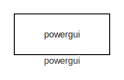
[diagram: root canvas - part 1/3, top center region]
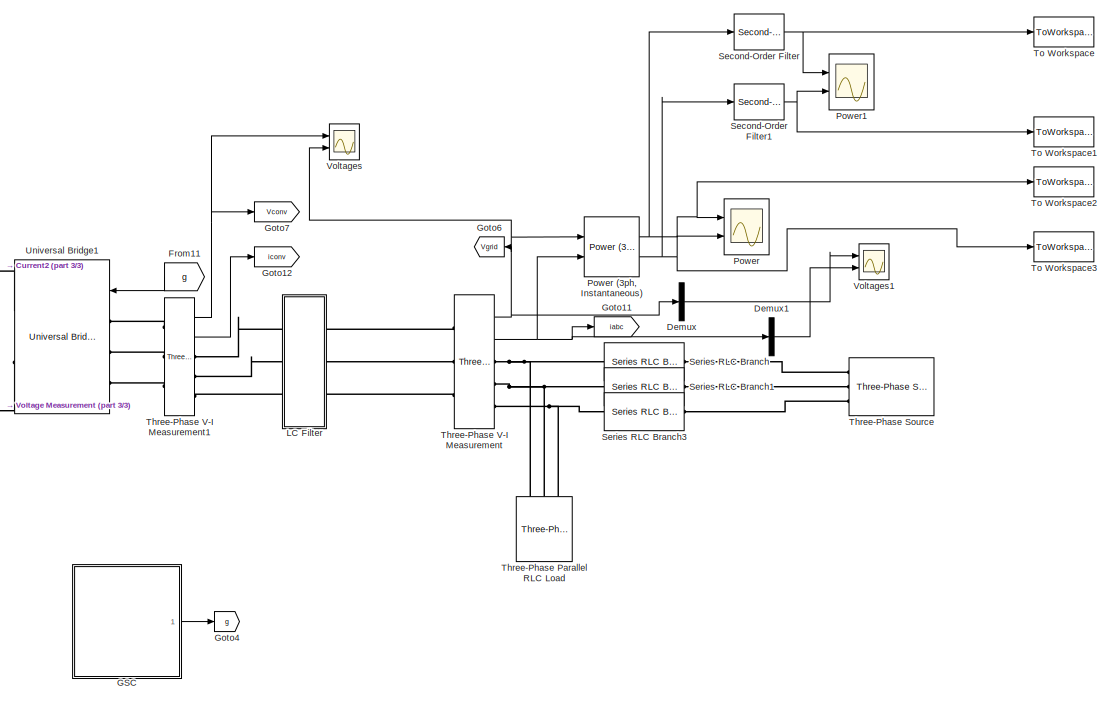
[diagram: root canvas - part 2/3, right side, full height]
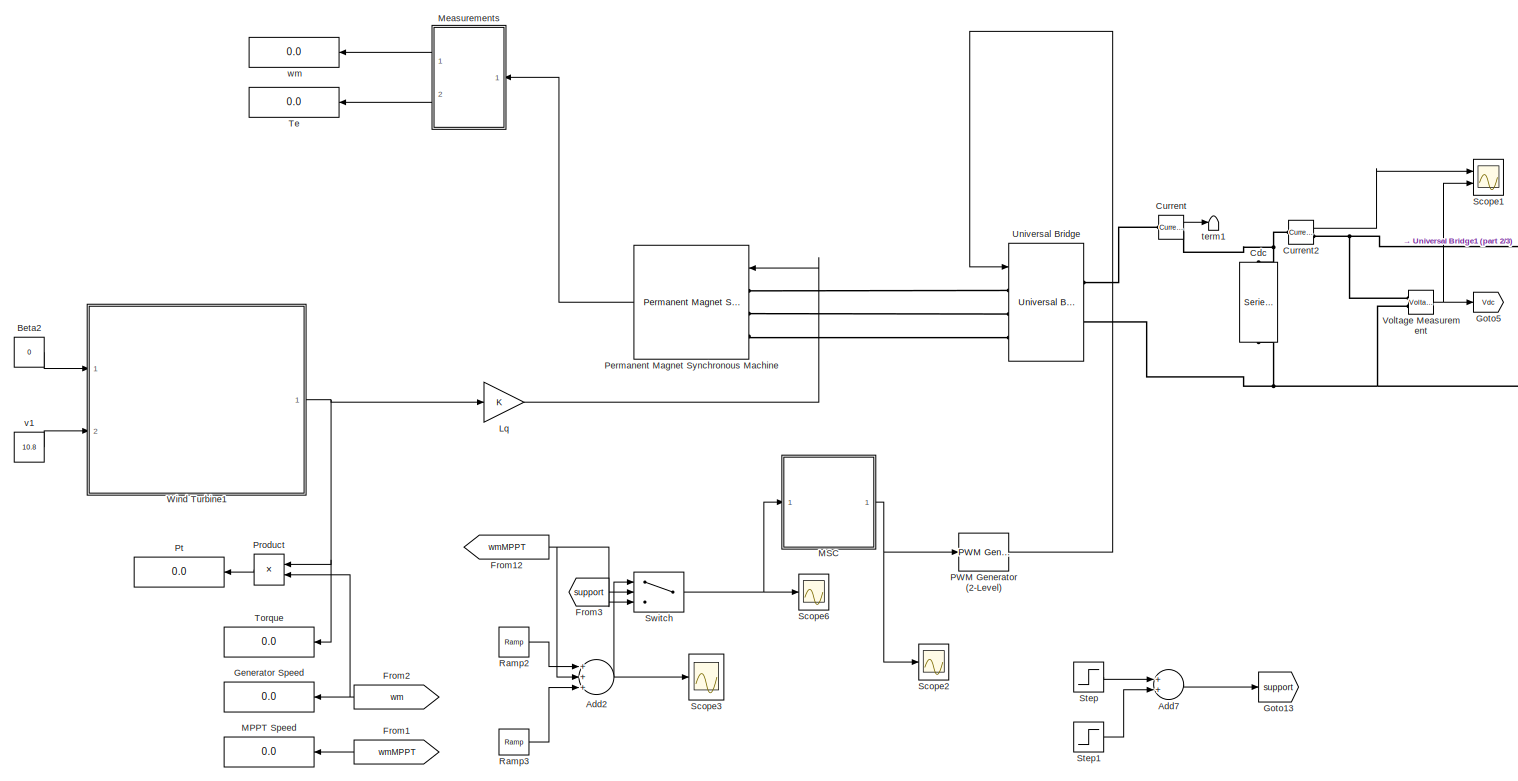
[diagram: root canvas - part 3/3, left side, full height]
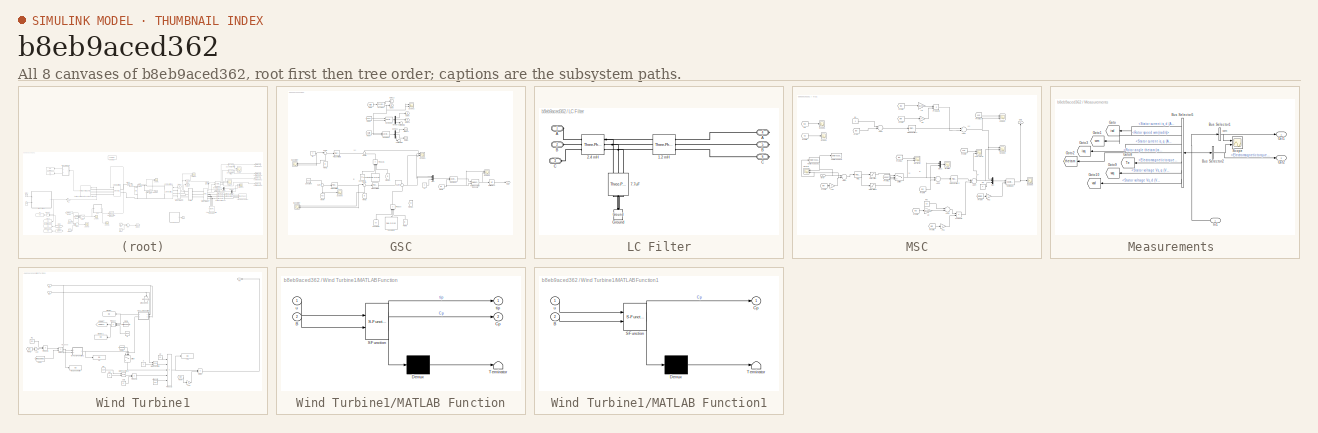
[diagram: thumbnail index - all 8 canvases of the model, root first then tree order]
MODEL slx_b8eb9aced362
KIND model
CONFIG AbsTol = auto
CONFIG FixedStep = Ts
CONFIG MaxStep = auto
CONFIG MinStep = auto
CONFIG PreLoadFcn = Ts=5e-6;
CONFIG RelTol = 1e-3
CONFIG SampleTimeConstraint = Unconstrained
CONFIG Solver = FixedStepDiscrete
CONFIG SolverMode = Auto
CONFIG SolverName = FixedStepDiscrete
CONFIG StartTime = 0.0
CONFIG StopTime = 3
BLOCK [Sum] Add2
  InputSameDT = off
  Inputs = +++
  OutDataTypeStr = Inherit: Inherit via internal rule
  Ports = [3, 1]
  SaturateOnIntegerOverflow = off
BLOCK [Sum] Add7
  InputSameDT = off
  OutDataTypeStr = Inherit: Inherit via internal rule
  Ports = [2, 1]
  SaturateOnIntegerOverflow = off
BLOCK [Constant] Beta2
  Value = 0
BLOCK [Reference] Cdc  REF=powerlib/Elements/Series RLC Branch
  Ports = [0, 0, 0, 0, 0, 1, 1]
  SourceBlock = powerlib/Elements/Series RLC Branch
  SourceType = Series RLC Branch
BLOCK [Reference] Current   REF=powerlib/Measurements/Current Measurement
  Ports = [0, 1, 0, 0, 0, 1, 1]
  SourceBlock = powerlib/Measurements/Current Measurement
  SourceType = Current Measurement
  UserDataPersistent = on
BLOCK [Reference] Current2  REF=powerlib/Measurements/Current Measurement
  Ports = [0, 1, 0, 0, 0, 1, 1]
  SourceBlock = powerlib/Measurements/Current Measurement
  SourceType = Current Measurement
  UserDataPersistent = on
BLOCK [Demux] Demux
  DisplayOption = bar
  Outputs = 3
  Ports = [1, 3]
BLOCK [Demux] Demux1
  DisplayOption = bar
  Outputs = 3
  Ports = [1, 3]
BLOCK [From] From1
  GotoTag = wmMPPT
  TagVisibility = global
BLOCK [From] From11
  GotoTag = g
  TagVisibility = global
BLOCK [From] From12
  GotoTag = wmMPPT
  TagVisibility = global
BLOCK [From] From2
  GotoTag = wm
  TagVisibility = global
BLOCK [From] From3
  GotoTag = support
  TagVisibility = global
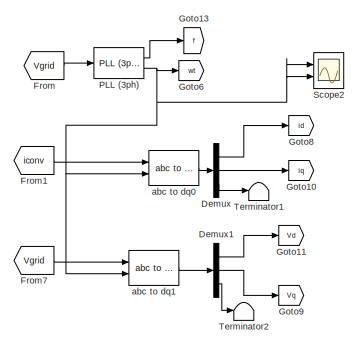
[diagram: GSC - part 1/2, top center region]
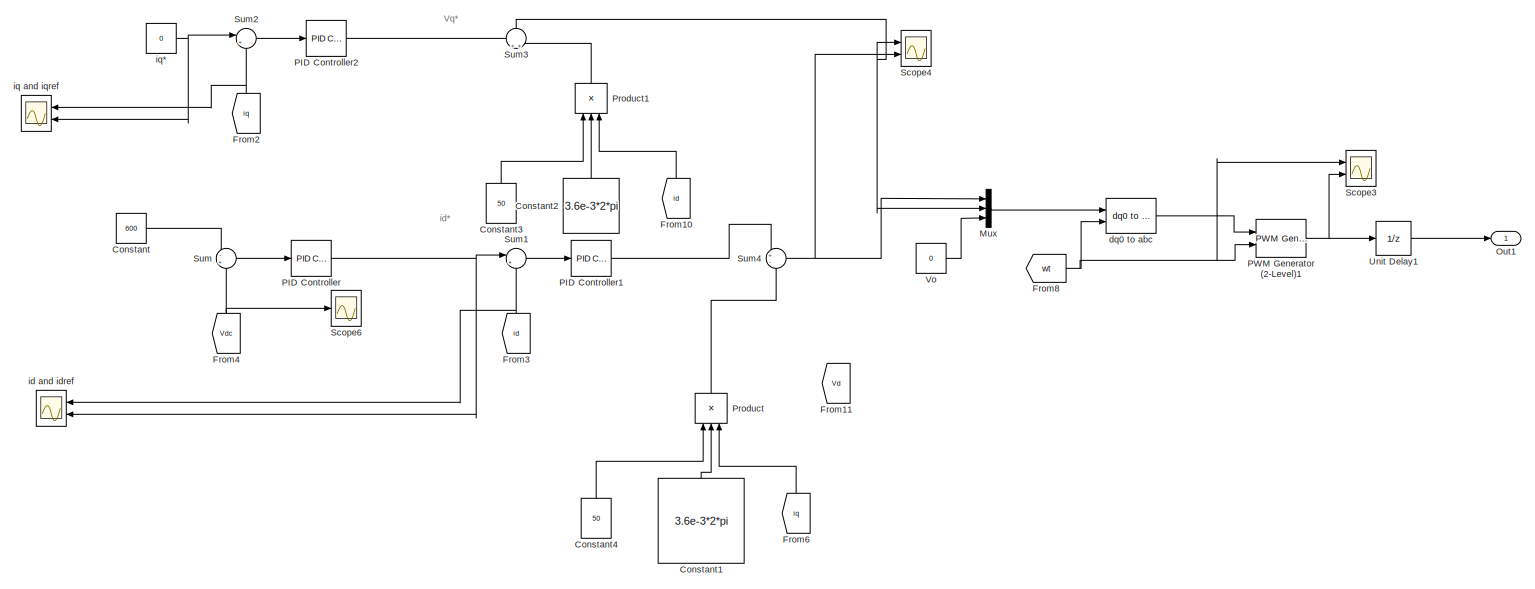
[diagram: GSC - part 2/2, full width, bottom band]
BLOCK [SubSystem] GSC
  Ports = [0, 1]
  RequestExecContextInheritance = off
  Variant = off
BLOCK [Constant] GSC/Constant
  Value = 600
BLOCK [Constant] GSC/Constant1
  Value = 3.6e-3*2*pi
BLOCK [Constant] GSC/Constant2
  Value = 3.6e-3*2*pi
BLOCK [Constant] GSC/Constant3
  Value = 50
BLOCK [Constant] GSC/Constant4
  Value = 50
BLOCK [Demux] GSC/Demux
  DisplayOption = bar
  Outputs = 3
  Ports = [1, 3]
BLOCK [Demux] GSC/Demux1
  DisplayOption = bar
  Outputs = 3
  Ports = [1, 3]
BLOCK [From] GSC/From
  GotoTag = Vgrid
  TagVisibility = global
BLOCK [From] GSC/From1
  GotoTag = iconv
  TagVisibility = global
BLOCK [From] GSC/From10
  GotoTag = id
  TagVisibility = global
BLOCK [From] GSC/From11
  GotoTag = Vd
  TagVisibility = global
BLOCK [From] GSC/From2
  GotoTag = iq
  TagVisibility = global
BLOCK [From] GSC/From3
  GotoTag = id
  TagVisibility = global
BLOCK [From] GSC/From4
  GotoTag = Vdc
  TagVisibility = global
BLOCK [From] GSC/From6
  GotoTag = iq
  TagVisibility = global
BLOCK [From] GSC/From7
  GotoTag = Vgrid
  TagVisibility = global
BLOCK [From] GSC/From8
  GotoTag = wt
  TagVisibility = global
BLOCK [Goto] GSC/Goto10
  GotoTag = iq
  TagVisibility = global
BLOCK [Goto] GSC/Goto11
  GotoTag = Vd
  TagVisibility = global
BLOCK [Goto] GSC/Goto13
  GotoTag = f
  TagVisibility = global
BLOCK [Goto] GSC/Goto6
  GotoTag = wt
  TagVisibility = global
BLOCK [Goto] GSC/Goto8
  GotoTag = id
  TagVisibility = global
BLOCK [Goto] GSC/Goto9
  GotoTag = Vq
  TagVisibility = global
BLOCK [Mux] GSC/Mux
  DisplayOption = bar
  Inputs = 3
  Ports = [3, 1]
BLOCK [Outport] GSC/Out1
  IconDisplay = Port number
BLOCK [Reference] GSC/PID Controller  REF=simulink/Continuous/PID Controller
  Ports = [1, 1]
  SourceBlock = simulink/Continuous/PID Controller
  SourceType = PID 1dof
BLOCK [Reference] GSC/PID Controller1  REF=simulink/Continuous/PID Controller
  Ports = [1, 1]
  SourceBlock = simulink/Continuous/PID Controller
  SourceType = PID 1dof
BLOCK [Reference] GSC/PID Controller2  REF=simulink/Continuous/PID Controller
  Ports = [1, 1]
  SourceBlock = simulink/Continuous/PID Controller
  SourceType = PID 1dof
BLOCK [Reference] GSC/PLL (3ph)  REF=powerlib_meascontrol/PLL/PLL
(3ph)
  Ports = [1, 2]
  SourceBlock = powerlib_meascontrol/PLL/PLL\n(3ph)
  SourceType = PLL (3ph)
BLOCK [Reference] GSC/PWM Generator (2-Level)1  REF=powerlib_meascontrol/Pulse & Signal
Generators/PWM Generator
(2-Level)
  Ports = [2, 1]
  SourceBlock = powerlib_meascontrol/Pulse & Signal\nGenerators/PWM Generator\n(2-Level)
  SourceType = PWM Generator (2-Level)
BLOCK [Product] GSC/Product
  InputSameDT = off
  Inputs = 3
  OutDataTypeStr = Inherit: Inherit via internal rule
  Ports = [3, 1]
  RndMeth = Floor
  SaturateOnIntegerOverflow = off
BLOCK [Product] GSC/Product1
  InputSameDT = off
  Inputs = 3
  OutDataTypeStr = Inherit: Inherit via internal rule
  Ports = [3, 1]
  RndMeth = Floor
  SaturateOnIntegerOverflow = off
BLOCK [Scope] GSC/Scope2
  NumInputPorts = 2
  Ports = [2]
  ScopeSpecificationString = Simulink.scopes.TimeScopeBlockCfg('CurrentConfiguration', extmgr.ConfigurationSet(extmgr.Configuration('Core','General UI',true),extmgr.Configuration('Core','Source UI',true),extmgr.Configuration('Sources','WiredSimulink',true,'DataLoggingVariableName','ScopeData1'),extmgr.Configuration('Visuals','Time Domain',true,'SerializedDisplays',{struct('MinYLimReal','-0.57163','MaxYLimReal','6.40229','YLab...<+1455ch>
BLOCK [Scope] GSC/Scope3
  NumInputPorts = 2
  Ports = [2]
  ScopeSpecificationString = Simulink.scopes.TimeScopeBlockCfg('CurrentConfiguration', extmgr.ConfigurationSet(extmgr.Configuration('Core','General UI',true),extmgr.Configuration('Core','Source UI',true),extmgr.Configuration('Sources','WiredSimulink',true,'DataLoggingVariableName','ScopeData2'),extmgr.Configuration('Visuals','Time Domain',true,'SerializedDisplays',{struct('MinYLimReal','0.00875','MaxYLimReal','1.02252','YLabe...<+1588ch>
BLOCK [Scope] GSC/Scope4
  NumInputPorts = 2
  Ports = [2]
  ScopeSpecificationString = Simulink.scopes.TimeScopeBlockCfg('CurrentConfiguration', extmgr.ConfigurationSet(extmgr.Configuration('Core','General UI',true),extmgr.Configuration('Core','Source UI',true),extmgr.Configuration('Sources','WiredSimulink',true,'DataLoggingSaveFormat','StructureWithTime','DataLoggingDecimation','1','DataLoggingDecimateData',true,'DataLoggingVariableName','ScopeData2'),extmgr.Configuration('Visuals'...<+2250ch>
BLOCK [Scope] GSC/Scope6
  Ports = [1]
  ScopeSpecificationString = Simulink.scopes.TimeScopeBlockCfg('CurrentConfiguration', extmgr.ConfigurationSet(extmgr.Configuration('Core','General UI',true),extmgr.Configuration('Core','Source UI',true),extmgr.Configuration('Sources','WiredSimulink',true,'DataLoggingVariableName','ScopeData6'),extmgr.Configuration('Visuals','Time Domain',true,'SerializedDisplays',{struct('MinYLimReal','597.85451','MaxYLimReal','602.65595','Y...<+1467ch>
BLOCK [Sum] GSC/Sum
  IconShape = round
  InputSameDT = off
  Inputs = -+
  OutDataTypeStr = Inherit: Inherit via internal rule
  Ports = [2, 1]
  SaturateOnIntegerOverflow = off
BLOCK [Sum] GSC/Sum1
  IconShape = round
  InputSameDT = off
  Inputs = |+-
  OutDataTypeStr = Inherit: Inherit via internal rule
  Ports = [2, 1]
  SaturateOnIntegerOverflow = off
BLOCK [Sum] GSC/Sum2
  IconShape = round
  InputSameDT = off
  Inputs = |+-
  OutDataTypeStr = Inherit: Inherit via internal rule
  Ports = [2, 1]
  SaturateOnIntegerOverflow = off
BLOCK [Sum] GSC/Sum3
  IconShape = round
  InputSameDT = off
  OutDataTypeStr = Inherit: Inherit via internal rule
  Ports = [2, 1]
  SaturateOnIntegerOverflow = off
BLOCK [Sum] GSC/Sum4
  IconShape = round
  InputSameDT = off
  Inputs = +-
  OutDataTypeStr = Inherit: Inherit via internal rule
  Ports = [2, 1]
  SaturateOnIntegerOverflow = off
BLOCK [Terminator] GSC/Terminator1
BLOCK [Terminator] GSC/Terminator2
BLOCK [UnitDelay] GSC/Unit Delay1
  InputProcessing = Elements as channels (sample based)
  SampleTime = -1
BLOCK [Constant] GSC/Vo
  Value = 0
BLOCK [Reference] GSC/abc to dq0  REF=powerlib_meascontrol/Transformations/abc to dq0
  Ports = [2, 1]
  SourceBlock = powerlib_meascontrol/Transformations/abc to dq0
  SourceType = abc to dq0 Transformation
BLOCK [Reference] GSC/abc to dq1  REF=powerlib_meascontrol/Transformations/abc to dq0
  Ports = [2, 1]
  SourceBlock = powerlib_meascontrol/Transformations/abc to dq0
  SourceType = abc to dq0 Transformation
BLOCK [Reference] GSC/dq0 to abc  REF=powerlib_meascontrol/Transformations/dq0 to abc
  Ports = [2, 1]
  SourceBlock = powerlib_meascontrol/Transformations/dq0 to abc
  SourceType = dq0 to abc Transformation
BLOCK [Scope] GSC/id and idref
  NumInputPorts = 2
  Ports = [2]
  ScopeSpecificationString = Simulink.scopes.TimeScopeBlockCfg('CurrentConfiguration', extmgr.ConfigurationSet(extmgr.Configuration('Core','General UI',true),extmgr.Configuration('Core','Source UI',true),extmgr.Configuration('Sources','WiredSimulink',true,'DataLoggingVariableName','ScopeData5'),extmgr.Configuration('Visuals','Time Domain',true,'SerializedDisplays',{struct('MinYLimReal','-2481.7319','MaxYLimReal','2438.20995',...<+1451ch>
BLOCK [Scope] GSC/iq and iqref
  NumInputPorts = 2
  Ports = [2]
  ScopeSpecificationString = Simulink.scopes.TimeScopeBlockCfg('CurrentConfiguration', extmgr.ConfigurationSet(extmgr.Configuration('Core','General UI',true),extmgr.Configuration('Core','Source UI',true),extmgr.Configuration('Sources','WiredSimulink',true,'DataLoggingVariableName','ScopeData2'),extmgr.Configuration('Visuals','Time Domain',true,'SerializedDisplays',{struct('MinYLimReal','-2.11337','MaxYLimReal','2.55406','YLab...<+1470ch>
BLOCK [Constant] GSC/iq*
  Value = 0
BLOCK [Display] Generator Speed
  Decimation = 1
  Ports = [1]
BLOCK [Goto] Goto11
  GotoTag = iabc
  TagVisibility = global
BLOCK [Goto] Goto12
  GotoTag = iconv
  TagVisibility = global
BLOCK [Goto] Goto13
  GotoTag = support
  TagVisibility = global
BLOCK [Goto] Goto4
  GotoTag = g
  TagVisibility = global
BLOCK [Goto] Goto5
  GotoTag = Vdc
  TagVisibility = global
BLOCK [Goto] Goto6
  GotoTag = Vgrid
  TagVisibility = global
BLOCK [Goto] Goto7
  GotoTag = Vconv
  TagVisibility = global
BLOCK [SubSystem] LC Filter
  Ports = [0, 0, 0, 0, 0, 3, 3]
  RequestExecContextInheritance = off
  Variant = off
BLOCK [Reference] LC Filter/1.2 mH  REF=powerlib/Elements/Three-Phase
Series RLC Branch
  AttributesFormatString = \n
  Ports = [0, 0, 0, 0, 0, 3, 3]
  SourceBlock = powerlib/Elements/Three-Phase\nSeries RLC Branch
  SourceType = Three-Phase Series RLC Branch
BLOCK [Reference] LC Filter/2.4 mH   REF=powerlib/Elements/Three-Phase
Series RLC Branch
  AttributesFormatString = \n
  Ports = [0, 0, 0, 0, 0, 3, 3]
  SourceBlock = powerlib/Elements/Three-Phase\nSeries RLC Branch
  SourceType = Three-Phase Series RLC Branch
BLOCK [Reference] LC Filter/7.7uF  REF=powerlib/Elements/Three-Phase
Series RLC Branch
  AttributesFormatString = \n
  Ports = [0, 0, 0, 0, 0, 3, 3]
  SourceBlock = powerlib/Elements/Three-Phase\nSeries RLC Branch
  SourceType = Three-Phase Series RLC Branch
BLOCK [PMIOPort] LC Filter/A
  Port = 1
  Side = Left
BLOCK [PMIOPort] LC Filter/A 
  Port = 4
  Side = Right
BLOCK [PMIOPort] LC Filter/B
  Port = 2
  Side = Left
BLOCK [PMIOPort] LC Filter/B 
  Port = 5
  Side = Right
BLOCK [PMIOPort] LC Filter/C
  Port = 3
  Side = Left
BLOCK [PMIOPort] LC Filter/C 
  Port = 6
  Side = Right
BLOCK [Reference] LC Filter/Ground  REF=powerlib/Elements/Ground
  Ports = [0, 0, 0, 0, 0, 1]
  SourceBlock = powerlib/Elements/Ground
  SourceType = Ground
BLOCK [Gain] Lq
  OutDataTypeStr = Inherit: Inherit via internal rule
  ParamDataTypeStr = Inherit: Inherit via internal rule
  SaturateOnIntegerOverflow = off
BLOCK [Display] MPPT  Speed
  Decimation = 1
  Ports = [1]
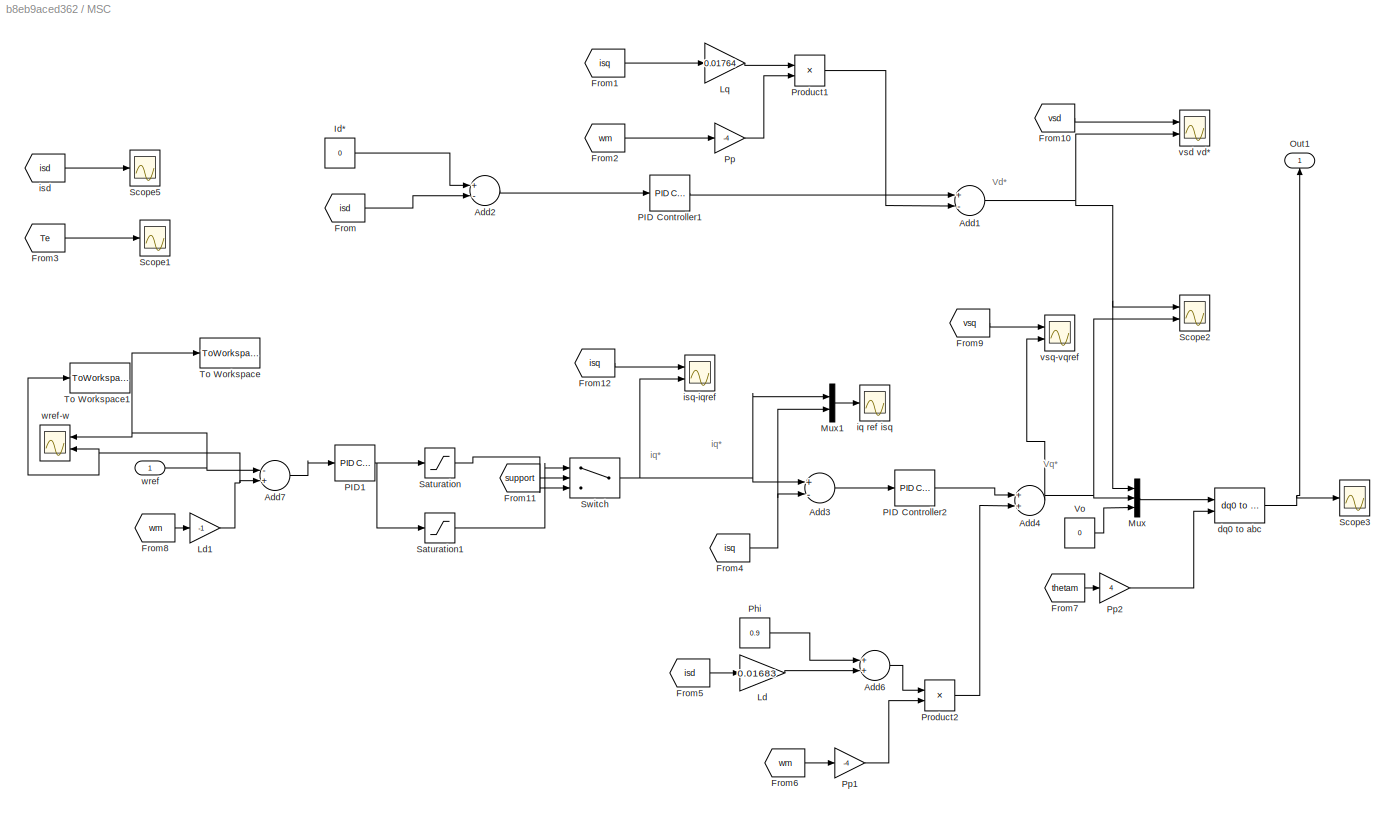
BLOCK [SubSystem] MSC
  Ports = [1, 1]
  RequestExecContextInheritance = off
  Variant = off
BLOCK [Sum] MSC/Add1
  InputSameDT = off
  Inputs = +-
  OutDataTypeStr = Inherit: Inherit via internal rule
  Ports = [2, 1]
  SaturateOnIntegerOverflow = off
BLOCK [Sum] MSC/Add2
  InputSameDT = off
  Inputs = +-
  OutDataTypeStr = Inherit: Inherit via internal rule
  Ports = [2, 1]
  SaturateOnIntegerOverflow = off
BLOCK [Sum] MSC/Add3
  InputSameDT = off
  Inputs = +-
  OutDataTypeStr = Inherit: Inherit via internal rule
  Ports = [2, 1]
  SaturateOnIntegerOverflow = off
BLOCK [Sum] MSC/Add4
  InputSameDT = off
  OutDataTypeStr = Inherit: Inherit via internal rule
  Ports = [2, 1]
  SaturateOnIntegerOverflow = off
BLOCK [Sum] MSC/Add6
  InputSameDT = off
  OutDataTypeStr = Inherit: Inherit via internal rule
  Ports = [2, 1]
  SaturateOnIntegerOverflow = off
BLOCK [Sum] MSC/Add7
  InputSameDT = off
  Inputs = -+
  OutDataTypeStr = Inherit: Inherit via internal rule
  Ports = [2, 1]
  SaturateOnIntegerOverflow = off
BLOCK [From] MSC/From
  GotoTag = isd
  TagVisibility = global
BLOCK [From] MSC/From1
  GotoTag = isq
  TagVisibility = global
BLOCK [From] MSC/From10
  GotoTag = vsd
  TagVisibility = global
BLOCK [From] MSC/From11
  GotoTag = support
  TagVisibility = global
BLOCK [From] MSC/From12
  GotoTag = isq
  TagVisibility = global
BLOCK [From] MSC/From2
  GotoTag = wm
  TagVisibility = global
BLOCK [From] MSC/From3
  GotoTag = Te
  TagVisibility = global
BLOCK [From] MSC/From4
  GotoTag = isq
  TagVisibility = global
BLOCK [From] MSC/From5
  GotoTag = isd
  TagVisibility = global
BLOCK [From] MSC/From6
  GotoTag = wm
  TagVisibility = global
BLOCK [From] MSC/From7
  GotoTag = thetam
  TagVisibility = global
BLOCK [From] MSC/From8
  GotoTag = wm
  TagVisibility = global
BLOCK [From] MSC/From9
  GotoTag = vsq
  TagVisibility = global
BLOCK [Constant] MSC/Id*
  Value = 0
BLOCK [Gain] MSC/Ld
  Gain = 0.01683
  OutDataTypeStr = Inherit: Inherit via internal rule
  ParamDataTypeStr = Inherit: Inherit via internal rule
  SaturateOnIntegerOverflow = off
BLOCK [Gain] MSC/Ld1
  Gain = -1
  OutDataTypeStr = Inherit: Inherit via internal rule
  ParamDataTypeStr = Inherit: Inherit via internal rule
  SaturateOnIntegerOverflow = off
BLOCK [Gain] MSC/Lq
  Gain = 0.01764
  OutDataTypeStr = Inherit: Inherit via internal rule
  ParamDataTypeStr = Inherit: Inherit via internal rule
  SaturateOnIntegerOverflow = off
BLOCK [Mux] MSC/Mux
  DisplayOption = bar
  Inputs = 3
  Ports = [3, 1]
BLOCK [Mux] MSC/Mux1
  DisplayOption = bar
  Inputs = 2
  Ports = [2, 1]
BLOCK [Outport] MSC/Out1
  IconDisplay = Port number
BLOCK [Reference] MSC/PID Controller1  REF=simulink/Continuous/PID Controller
  Ports = [1, 1]
  SourceBlock = simulink/Continuous/PID Controller
  SourceType = PID 1dof
BLOCK [Reference] MSC/PID Controller2  REF=simulink/Continuous/PID Controller
  Ports = [1, 1]
  SourceBlock = simulink/Continuous/PID Controller
  SourceType = PID 1dof
BLOCK [Reference] MSC/PID1  REF=simulink/Continuous/PID Controller
  Ports = [1, 1]
  SourceBlock = simulink/Continuous/PID Controller
  SourceType = PID 1dof
BLOCK [Constant] MSC/Phi
  Value = 0.9
BLOCK [Gain] MSC/Pp
  Gain = -4
  OutDataTypeStr = Inherit: Inherit via internal rule
  ParamDataTypeStr = Inherit: Inherit via internal rule
  SaturateOnIntegerOverflow = off
BLOCK [Gain] MSC/Pp1
  Gain = -4
  OutDataTypeStr = Inherit: Inherit via internal rule
  ParamDataTypeStr = Inherit: Inherit via internal rule
  SaturateOnIntegerOverflow = off
BLOCK [Gain] MSC/Pp2
  Gain = 4
  OutDataTypeStr = Inherit: Inherit via internal rule
  ParamDataTypeStr = Inherit: Inherit via internal rule
  SaturateOnIntegerOverflow = off
BLOCK [Product] MSC/Product1
  InputSameDT = off
  OutDataTypeStr = Inherit: Inherit via internal rule
  Ports = [2, 1]
  RndMeth = Floor
  SaturateOnIntegerOverflow = off
BLOCK [Product] MSC/Product2
  InputSameDT = off
  OutDataTypeStr = Inherit: Inherit via internal rule
  Ports = [2, 1]
  RndMeth = Floor
  SaturateOnIntegerOverflow = off
BLOCK [Saturate] MSC/Saturation
  InputPortMap = u0
  LowerLimit = 0
  Ports = [1, 1]
  UpperLimit = 37.5
BLOCK [Saturate] MSC/Saturation1
  InputPortMap = u0
  LowerLimit = 15
  Ports = [1, 1]
  UpperLimit = 37.5
BLOCK [Scope] MSC/Scope1
  Ports = [1]
  ScopeSpecificationString = Simulink.scopes.TimeScopeBlockCfg('CurrentConfiguration', extmgr.ConfigurationSet(extmgr.Configuration('Core','General UI',true),extmgr.Configuration('Core','Source UI',true),extmgr.Configuration('Sources','WiredSimulink',true,'DataLoggingVariableName','ScopeData2'),extmgr.Configuration('Visuals','Time Domain',true,'SerializedDisplays',{struct('MinYLimReal','128.43946','MaxYLimReal','278.99877','Y...<+1478ch>
BLOCK [Scope] MSC/Scope2
  NumInputPorts = 2
  Ports = [2]
  ScopeSpecificationString = Simulink.scopes.TimeScopeBlockCfg('CurrentConfiguration', extmgr.ConfigurationSet(extmgr.Configuration('Core','General UI',true),extmgr.Configuration('Core','Source UI',true),extmgr.Configuration('Sources','WiredSimulink',true,'DataLoggingVariableName','ScopeData3'),extmgr.Configuration('Visuals','Time Domain',true,'SerializedDisplays',{struct('MinYLimReal','-2.81705','MaxYLimReal','1.8745','YLabe...<+1414ch>
BLOCK [Scope] MSC/Scope3
  Ports = [1]
  ScopeSpecificationString = Simulink.scopes.TimeScopeBlockCfg('CurrentConfiguration', extmgr.ConfigurationSet(extmgr.Configuration('Core','General UI',true),extmgr.Configuration('Core','Source UI',true),extmgr.Configuration('Sources','WiredSimulink',true,'DataLoggingVariableName','ScopeData4'),extmgr.Configuration('Visuals','Time Domain',true,'SerializedDisplays',{struct('MinYLimReal','-3.20742','MaxYLimReal','2.23053','YLab...<+1447ch>
BLOCK [Scope] MSC/Scope5
  Ports = [1]
  ScopeSpecificationString = Simulink.scopes.TimeScopeBlockCfg('CurrentConfiguration', extmgr.ConfigurationSet(extmgr.Configuration('Core','General UI',true),extmgr.Configuration('Core','Source UI',true),extmgr.Configuration('Sources','WiredSimulink',true,'DataLoggingVariableName','ScopeData1'),extmgr.Configuration('Visuals','Time Domain',true,'SerializedDisplays',{struct('MinYLimReal','-12.19878','MaxYLimReal','1.35542','YLa...<+1433ch>
BLOCK [Switch] MSC/Switch
  Criteria = u2 > Threshold
  InputSameDT = off
  SaturateOnIntegerOverflow = off
BLOCK [ToWorkspace] MSC/To Workspace
  FixptAsFi = on
  MaxDataPoints = inf
  Ports = [1]
  SampleTime = -1
  Save2DSignal = 3-D array (concatenate along third dimension)
  SaveFormat = Timeseries
  VariableName = wref
BLOCK [ToWorkspace] MSC/To Workspace1
  FixptAsFi = on
  MaxDataPoints = inf
  Ports = [1]
  SampleTime = -1
  Save2DSignal = 3-D array (concatenate along third dimension)
  SaveFormat = Timeseries
  VariableName = wm
BLOCK [Constant] MSC/Vo
  Value = 0
BLOCK [Reference] MSC/dq0 to abc  REF=powerlib_meascontrol/Transformations/dq0 to abc
  Ports = [2, 1]
  SourceBlock = powerlib_meascontrol/Transformations/dq0 to abc
  SourceType = dq0 to abc Transformation
BLOCK [Scope] MSC/iq ref isq
  Ports = [1]
  ScopeSpecificationString = Simulink.scopes.TimeScopeBlockCfg('CurrentConfiguration', extmgr.ConfigurationSet(extmgr.Configuration('Core','General UI',true),extmgr.Configuration('Core','Source UI',true),extmgr.Configuration('Sources','WiredSimulink',true,'DataLoggingVariableName','ScopeData7'),extmgr.Configuration('Visuals','Time Domain',true,'SerializedDisplays',{struct('MinYLimReal','10.76485','MaxYLimReal','32.14451','YLa...<+1491ch>
BLOCK [From] MSC/isd
  GotoTag = isd
  TagVisibility = global
BLOCK [Scope] MSC/isq-iqref
  NumInputPorts = 2
  Ports = [2]
  ScopeSpecificationString = Simulink.scopes.TimeScopeBlockCfg('CurrentConfiguration', extmgr.ConfigurationSet(extmgr.Configuration('Core','General UI',true),extmgr.Configuration('Core','Source UI',true),extmgr.Configuration('Sources','WiredSimulink',true,'DataLoggingVariableName','ScopeData2'),extmgr.Configuration('Visuals','Time Domain',true,'SerializedDisplays',{struct('MinYLimReal','-5.57627','MaxYLimReal','50.18644','YLa...<+1468ch>
BLOCK [Scope] MSC/vsd vd*
  NumInputPorts = 2
  Ports = [2]
  ScopeSpecificationString = Simulink.scopes.TimeScopeBlockCfg('CurrentConfiguration', extmgr.ConfigurationSet(extmgr.Configuration('Core','General UI',true),extmgr.Configuration('Core','Source UI',true),extmgr.Configuration('Sources','WiredSimulink',true,'DataLoggingVariableName','ScopeData3'),extmgr.Configuration('Visuals','Time Domain',true,'SerializedDisplays',{struct('MinYLimReal','-442.65934','MaxYLimReal','355.61034','...<+1498ch>
BLOCK [Scope] MSC/vsq-vqref
  NumInputPorts = 2
  Ports = [2]
  ScopeSpecificationString = Simulink.scopes.TimeScopeBlockCfg('CurrentConfiguration', extmgr.ConfigurationSet(extmgr.Configuration('Core','General UI',true),extmgr.Configuration('Core','Source UI',true),extmgr.Configuration('Sources','WiredSimulink',true,'DataLoggingVariableName','ScopeData8'),extmgr.Configuration('Visuals','Time Domain',true,'SerializedDisplays',{struct('MinYLimReal','-25.15334','MaxYLimReal','16.44224','YL...<+1490ch>
BLOCK [Inport] MSC/wref
  IconDisplay = Port number
BLOCK [Scope] MSC/wref-w
  NumInputPorts = 2
  Ports = [2]
  ScopeSpecificationString = Simulink.scopes.TimeScopeBlockCfg('CurrentConfiguration', extmgr.ConfigurationSet(extmgr.Configuration('Core','General UI',true),extmgr.Configuration('Core','Source UI',true),extmgr.Configuration('Sources','WiredSimulink',true,'DataLoggingVariableName','ScopeData1'),extmgr.Configuration('Visuals','Time Domain',true,'SerializedDisplays',{struct('MinYLimReal','27.79115','MaxYLimReal','43.69264','YLa...<+1445ch>
BLOCK [SubSystem] Measurements 
  Ports = [1, 2]
  RequestExecContextInheritance = off
  Variant = off
BLOCK [BusSelector] Measurements /Bus Selector1
  OutputAsBus = on
  OutputSignals = Rotor speed wm (rad/s)
  Ports = [1, 1]
BLOCK [BusSelector] Measurements /Bus Selector2
  OutputSignals = Electromagnetic torque Te (N*m)
  Ports = [1, 1]
BLOCK [BusSelector] Measurements /Bus Selector5
  OutputSignals = Stator current is_d (A),Rotor speed wm (rad/s),Stator current is_q (A),Rotor angle thetam (rad),Electromagnetic torque Te (N*m),Stator voltage Vs_q (V),Stator voltage Vs_d (V)
  Ports = [1, 7]
BLOCK [Goto] Measurements /Goto
  GotoTag = isd
  TagVisibility = global
BLOCK [Goto] Measurements /Goto1
  GotoTag = wm
  TagVisibility = global
BLOCK [Goto] Measurements /Goto10
  GotoTag = vsd
  TagVisibility = global
BLOCK [Goto] Measurements /Goto2
  GotoTag = thetam
  TagVisibility = global
BLOCK [Goto] Measurements /Goto3
  GotoTag = isq
  TagVisibility = global
BLOCK [Goto] Measurements /Goto8
  GotoTag = Te
  TagVisibility = global
BLOCK [Goto] Measurements /Goto9
  GotoTag = vsq
  TagVisibility = global
BLOCK [Inport] Measurements /In1
  IconDisplay = Port number
BLOCK [Outport] Measurements /Out1
  IconDisplay = Port number
BLOCK [Outport] Measurements /Out2
  IconDisplay = Port number
  Port = 2
BLOCK [Scope] Measurements /Scope
  NumInputPorts = 2
  Ports = [2]
  ScopeSpecificationString = Simulink.scopes.TimeScopeBlockCfg('CurrentConfiguration', extmgr.ConfigurationSet(extmgr.Configuration('Core','General UI',true),extmgr.Configuration('Core','Source UI',true),extmgr.Configuration('Sources','WiredSimulink',true,'DataLoggingSaveFormat','StructureWithTime','DataLoggingDecimation','1','DataLoggingDecimateData',true),extmgr.Configuration('Visuals','Time Domain',true,'SerializedDisplays...<+2239ch>
BLOCK [Reference] PWM Generator (2-Level)  REF=powerlib_meascontrol/Pulse & Signal
Generators/PWM Generator
(2-Level)
  Ports = [1, 1]
  SourceBlock = powerlib_meascontrol/Pulse & Signal\nGenerators/PWM Generator\n(2-Level)
  SourceType = PWM Generator (2-Level)
BLOCK [Reference] Permanent Magnet Synchronous Machine  REF=powerlib/Machines/Permanent Magnet
Synchronous Machine
  Ports = [1, 1, 0, 0, 0, 3]
  SourceBlock = powerlib/Machines/Permanent Magnet\nSynchronous Machine
  SourceType = Permanent Magnet Synchronous Machine
BLOCK [Scope] Power
  NumInputPorts = 2
  Ports = [2]
  ScopeSpecificationString = Simulink.scopes.TimeScopeBlockCfg('CurrentConfiguration', extmgr.ConfigurationSet(extmgr.Configuration('Core','General UI',true),extmgr.Configuration('Core','Source UI',true),extmgr.Configuration('Sources','WiredSimulink',true,'DataLoggingVariableName','ScopeData1'),extmgr.Configuration('Visuals','Time Domain',true,'SerializedDisplays',{struct('MinYLimReal','-2274.76577','MaxYLimReal','11375.04149...<+1519ch>
BLOCK [Reference] Power (3ph, Instantaneous)  REF=powerlib_meascontrol/Measurements/Power
(3ph, Instantaneous)
  Ports = [2, 2]
  SourceBlock = powerlib_meascontrol/Measurements/Power\n(3ph, Instantaneous)
  SourceType = Power (3ph, Instantaneous)
BLOCK [Scope] Power1
  NumInputPorts = 2
  Ports = [2]
  ScopeSpecificationString = Simulink.scopes.TimeScopeBlockCfg('CurrentConfiguration', extmgr.ConfigurationSet(extmgr.Configuration('Core','General UI',true),extmgr.Configuration('Core','Source UI',true),extmgr.Configuration('Sources','WiredSimulink',true,'DataLoggingVariableName','ScopeData1'),extmgr.Configuration('Visuals','Time Domain',true,'SerializedDisplays',{struct('MinYLimReal','-1085.67817','MaxYLimReal','8709.42449'...<+1499ch>
BLOCK [Product] Product
  InputSameDT = off
  OutDataTypeStr = Inherit: Inherit via internal rule
  Ports = [2, 1]
  RndMeth = Floor
  SaturateOnIntegerOverflow = off
BLOCK [Display] Pt
  Decimation = 1
  Ports = [1]
BLOCK [Reference] Ramp2  REF=simulink/Sources/Ramp
  Ports = [0, 1]
  SourceBlock = simulink/Sources/Ramp
  SourceType = Ramp
BLOCK [Reference] Ramp3  REF=simulink/Sources/Ramp
  Ports = [0, 1]
  SourceBlock = simulink/Sources/Ramp
  SourceType = Ramp
BLOCK [Scope] Scope1
  NumInputPorts = 2
  Ports = [2]
  ScopeSpecificationString = Simulink.scopes.TimeScopeBlockCfg('CurrentConfiguration', extmgr.ConfigurationSet(extmgr.Configuration('Core','General UI',true),extmgr.Configuration('Core','Source UI',true),extmgr.Configuration('Sources','WiredSimulink',true,'DataLoggingVariableName','ScopeData1'),extmgr.Configuration('Visuals','Time Domain',true,'SerializedDisplays',{struct('MinYLimReal','551.78415','MaxYLimReal','669.69676','Y...<+1478ch>
BLOCK [Scope] Scope2
  Ports = [1]
  ScopeSpecificationString = Simulink.scopes.TimeScopeBlockCfg('CurrentConfiguration', extmgr.ConfigurationSet(extmgr.Configuration('Core','General UI',true),extmgr.Configuration('Core','Source UI',true),extmgr.Configuration('Sources','WiredSimulink',true,'DataLoggingSaveFormat','StructureWithTime','DataLoggingDecimation','1','DataLoggingDecimateData',true,'DataLoggingVariableName','ScopeData10'),extmgr.Configuration('Visuals...<+2256ch>
BLOCK [Scope] Scope3
  Ports = [1]
  ScopeSpecificationString = Simulink.scopes.TimeScopeBlockCfg('CurrentConfiguration', extmgr.ConfigurationSet(extmgr.Configuration('Core','General UI',true),extmgr.Configuration('Core','Source UI',true),extmgr.Configuration('Sources','WiredSimulink',true,'DataLoggingVariableName','ScopeData1'),extmgr.Configuration('Visuals','Time Domain',true,'SerializedDisplays',{struct('MinYLimReal','31.855','MaxYLimReal','50.605','YLabelR...<+1405ch>
BLOCK [Scope] Scope6
  Ports = [1]
  ScopeSpecificationString = Simulink.scopes.TimeScopeBlockCfg('CurrentConfiguration', extmgr.ConfigurationSet(extmgr.Configuration('Core','General UI',true),extmgr.Configuration('Core','Source UI',true),extmgr.Configuration('Sources','WiredSimulink',true,'DataLoggingSaveFormat','StructureWithTime','DataLoggingDecimation','1','DataLoggingDecimateData',true,'DataLoggingVariableName','ScopeData1'),extmgr.Configuration('Visuals'...<+2248ch>
BLOCK [Reference] Second-Order Filter  REF=powerlib_meascontrol/Filters/Second-Order
Filter
  Ports = [1, 1]
  SourceBlock = powerlib_meascontrol/Filters/Second-Order\nFilter
  SourceType = Second-Order Filter
BLOCK [Reference] Second-Order Filter1  REF=powerlib_meascontrol/Filters/Second-Order
Filter
  Ports = [1, 1]
  SourceBlock = powerlib_meascontrol/Filters/Second-Order\nFilter
  SourceType = Second-Order Filter
BLOCK [Reference] Series RLC Branch  REF=powerlib/Elements/Series RLC Branch
  Ports = [0, 0, 0, 0, 0, 1, 1]
  SourceBlock = powerlib/Elements/Series RLC Branch
  SourceType = Series RLC Branch
BLOCK [Reference] Series RLC Branch1  REF=powerlib/Elements/Series RLC Branch
  Ports = [0, 0, 0, 0, 0, 1, 1]
  SourceBlock = powerlib/Elements/Series RLC Branch
  SourceType = Series RLC Branch
BLOCK [Reference] Series RLC Branch3  REF=powerlib/Elements/Series RLC Branch
  Ports = [0, 0, 0, 0, 0, 1, 1]
  SourceBlock = powerlib/Elements/Series RLC Branch
  SourceType = Series RLC Branch
BLOCK [Step] Step
  SampleTime = 0
  Time = sup
BLOCK [Step] Step1
  After = -1
  SampleTime = 0
  Time = sup+6
BLOCK [Switch] Switch
  Criteria = u2 > Threshold
  InputSameDT = off
  SaturateOnIntegerOverflow = off
BLOCK [Display] Te
  Decimation = 1
  Ports = [1]
BLOCK [Reference] Three-Phase Parallel RLC Load  REF=powerlib/Elements/Three-Phase
Parallel RLC Load
  AttributesFormatString = \n
  Ports = [0, 0, 0, 0, 0, 3]
  SourceBlock = powerlib/Elements/Three-Phase\nParallel RLC Load
  SourceType = Three-Phase Parallel RLC Load
BLOCK [Reference] Three-Phase Source  REF=powerlib/Electrical
Sources/Three-Phase Source
  Ports = [0, 0, 0, 0, 0, 0, 3]
  SourceBlock = powerlib/Electrical\nSources/Three-Phase Source
  SourceType = Three-Phase Source
BLOCK [Reference] Three-Phase V-I Measurement  REF=powerlib/Measurements/Three-Phase
V-I Measurement
  Ports = [0, 2, 0, 0, 0, 3, 3]
  SourceBlock = powerlib/Measurements/Three-Phase\nV-I Measurement
  SourceType = Three-Phase VI Measurement
BLOCK [Reference] Three-Phase V-I Measurement1  REF=powerlib/Measurements/Three-Phase
V-I Measurement
  Ports = [0, 2, 0, 0, 0, 3, 3]
  SourceBlock = powerlib/Measurements/Three-Phase\nV-I Measurement
  SourceType = Three-Phase VI Measurement
BLOCK [ToWorkspace] To Workspace
  FixptAsFi = on
  MaxDataPoints = inf
  Ports = [1]
  SampleTime = -1
  Save2DSignal = 3-D array (concatenate along third dimension)
  SaveFormat = Timeseries
  VariableName = Pfiltered
BLOCK [ToWorkspace] To Workspace1
  FixptAsFi = on
  MaxDataPoints = inf
  Ports = [1]
  SampleTime = -1
  Save2DSignal = 3-D array (concatenate along third dimension)
  SaveFormat = Timeseries
  VariableName = qfiltered
BLOCK [ToWorkspace] To Workspace2
  FixptAsFi = on
  MaxDataPoints = inf
  Ports = [1]
  SampleTime = -1
  Save2DSignal = 3-D array (concatenate along third dimension)
  SaveFormat = Timeseries
  VariableName = P
BLOCK [ToWorkspace] To Workspace3
  FixptAsFi = on
  MaxDataPoints = inf
  Ports = [1]
  SampleTime = -1
  Save2DSignal = 3-D array (concatenate along third dimension)
  SaveFormat = Timeseries
  VariableName = Q
BLOCK [Display] Torque
  Decimation = 1
  Ports = [1]
BLOCK [Reference] Universal Bridge  REF=powerlib/Power
Electronics/Universal Bridge
  Ports = [1, 0, 0, 0, 0, 3, 2]
  SourceBlock = powerlib/Power\nElectronics/Universal Bridge
  SourceType = Universal Bridge
BLOCK [Reference] Universal Bridge1  REF=powerlib/Power
Electronics/Universal Bridge
  Ports = [1, 0, 0, 0, 0, 3, 2]
  SourceBlock = powerlib/Power\nElectronics/Universal Bridge
  SourceType = Universal Bridge
BLOCK [Reference] Voltage Measurement  REF=powerlib/Measurements/Voltage Measurement
  Ports = [0, 1, 0, 0, 0, 2]
  SourceBlock = powerlib/Measurements/Voltage Measurement
  SourceType = Voltage Measurement
  UserDataPersistent = on
BLOCK [Scope] Voltages
  NumInputPorts = 2
  Ports = [2]
  ScopeSpecificationString = Simulink.scopes.TimeScopeBlockCfg('CurrentConfiguration', extmgr.ConfigurationSet(extmgr.Configuration('Core','General UI',true),extmgr.Configuration('Core','Source UI',true),extmgr.Configuration('Sources','WiredSimulink',true,'DataLoggingVariableName','ScopeData2'),extmgr.Configuration('Visuals','Time Domain',true,'SerializedDisplays',{struct('MinYLimReal','-6926.03772','MaxYLimReal','6888.76305'...<+1686ch>
BLOCK [Scope] Voltages1
  NumInputPorts = 2
  Ports = [2]
  ScopeSpecificationString = Simulink.scopes.TimeScopeBlockCfg('CurrentConfiguration', extmgr.ConfigurationSet(extmgr.Configuration('Core','General UI',true),extmgr.Configuration('Core','Source UI',true),extmgr.Configuration('Sources','WiredSimulink',true,'DataLoggingVariableName','ScopeData4'),extmgr.Configuration('Visuals','Time Domain',true,'SerializedDisplays',{struct('MinYLimReal','-32.1599','MaxYLimReal','30.12581','YLa...<+1455ch>
BLOCK [SubSystem] Wind Turbine1
  Ports = [2, 1]
  RequestExecContextInheritance = off
  Variant = off
BLOCK [Constant] Wind Turbine1/1//2
  Value = 0.5
BLOCK [Constant] Wind Turbine1/3
  Value = 3
BLOCK [Constant] Wind Turbine1/Air Density
  Value = 1.25
BLOCK [Display] Wind Turbine1/Cp
  Decimation = 1
  Ports = [1]
BLOCK [Display] Wind Turbine1/Display
  Decimation = 1
  Ports = [1]
BLOCK [Display] Wind Turbine1/Display1
  Decimation = 1
  Ports = [1]
BLOCK [Product] Wind Turbine1/Divide
  InputSameDT = off
  Inputs = */
  OutDataTypeStr = Inherit: Inherit via internal rule
  Ports = [2, 1]
  RndMeth = Floor
  SaturateOnIntegerOverflow = off
BLOCK [Product] Wind Turbine1/Divide1
  InputSameDT = off
  Inputs = */
  OutDataTypeStr = Inherit: Inherit via internal rule
  Ports = [2, 1]
  RndMeth = Floor
  SaturateOnIntegerOverflow = off
BLOCK [From] Wind Turbine1/From1
  GotoTag = windspeed
  TagVisibility = global
BLOCK [From] Wind Turbine1/From2
  GotoTag = wm
  TagVisibility = global
BLOCK [From] Wind Turbine1/From3
  GotoTag = windspeed
  TagVisibility = global
BLOCK [From] Wind Turbine1/From4
  GotoTag = wm
  TagVisibility = global
BLOCK [From] Wind Turbine1/From5
  GotoTag = support
  TagVisibility = global
BLOCK [Inport] Wind Turbine1/In1
  IconDisplay = Port number
BLOCK [Inport] Wind Turbine1/In2
  IconDisplay = Port number
  Port = 2
BLOCK [Gain] Wind Turbine1/Ld2
  Gain = -1
  OutDataTypeStr = Inherit: Inherit via internal rule
  ParamDataTypeStr = Inherit: Inherit via internal rule
  SaturateOnIntegerOverflow = off
BLOCK [Gain] Wind Turbine1/Ld3
  Gain = -1
  OutDataTypeStr = Inherit: Inherit via internal rule
  ParamDataTypeStr = Inherit: Inherit via internal rule
  SaturateOnIntegerOverflow = off
BLOCK [SubSystem] Wind Turbine1/MATLAB Function
  ErrorFcn = Stateflow.Translate.translate
  PermitHierarchicalResolution = ExplicitOnly
  Ports = [2, 2]
  RequestExecContextInheritance = off
  SFBlockType = MATLAB Function
  TreatAsAtomicUnit = on
  Variant = off
BLOCK [Demux] Wind Turbine1/MATLAB Function/ Demux 
  Outputs = 1
  Ports = [1, 1]
BLOCK [S-Function] Wind Turbine1/MATLAB Function/ SFunction 
  EnableBusSupport = on
  FunctionName = sf_sfun
  PortCounts = [2 3]
  Ports = [2, 3]
  SFunctionDeploymentMode = off
  Tag = Stateflow S-Function WTCS 1
BLOCK [Terminator] Wind Turbine1/MATLAB Function/ Terminator 
BLOCK [Inport] Wind Turbine1/MATLAB Function/B
  IconDisplay = Port number
  Port = 2
BLOCK [Outport] Wind Turbine1/MATLAB Function/Cp
  IconDisplay = Port number
  Port = 2
BLOCK [Outport] Wind Turbine1/MATLAB Function/tip
  IconDisplay = Port number
BLOCK [Inport] Wind Turbine1/MATLAB Function/u
  IconDisplay = Port number
BLOCK [SubSystem] Wind Turbine1/MATLAB Function1
  ErrorFcn = Stateflow.Translate.translate
  PermitHierarchicalResolution = ExplicitOnly
  Ports = [2, 1]
  RequestExecContextInheritance = off
  SFBlockType = MATLAB Function
  TreatAsAtomicUnit = on
  Variant = off
BLOCK [Demux] Wind Turbine1/MATLAB Function1/ Demux 
  Outputs = 1
  Ports = [1, 1]
BLOCK [S-Function] Wind Turbine1/MATLAB Function1/ SFunction 
  EnableBusSupport = on
  FunctionName = sf_sfun
  PortCounts = [2 2]
  Ports = [2, 2]
  SFunctionDeploymentMode = off
  Tag = Stateflow S-Function WTCS 2
BLOCK [Terminator] Wind Turbine1/MATLAB Function1/ Terminator 
BLOCK [Inport] Wind Turbine1/MATLAB Function1/B
  IconDisplay = Port number
  Port = 2
BLOCK [Outport] Wind Turbine1/MATLAB Function1/Cp
  IconDisplay = Port number
BLOCK [Inport] Wind Turbine1/MATLAB Function1/u
  IconDisplay = Port number
BLOCK [Math] Wind Turbine1/Math Function
  Operator = pow
  Ports = [2, 1]
BLOCK [Math] Wind Turbine1/Math Function1
  Operator = pow
  Ports = [2, 1]
BLOCK [Display] Wind Turbine1/Pm1
  Decimation = 1
  Ports = [1]
BLOCK [Product] Wind Turbine1/Product
  InputSameDT = off
  Inputs = 3
  OutDataTypeStr = Inherit: Inherit via internal rule
  Ports = [3, 1]
  RndMeth = Floor
  SaturateOnIntegerOverflow = off
BLOCK [Product] Wind Turbine1/Product1
  InputSameDT = off
  OutDataTypeStr = Inherit: Inherit via internal rule
  Ports = [2, 1]
  RndMeth = Floor
  SaturateOnIntegerOverflow = off
BLOCK [Product] Wind Turbine1/Product2
  InputSameDT = off
  Inputs = 5
  OutDataTypeStr = Inherit: Inherit via internal rule
  Ports = [5, 1]
  RndMeth = Floor
  SaturateOnIntegerOverflow = off
BLOCK [Product] Wind Turbine1/Product3
  InputSameDT = off
  OutDataTypeStr = Inherit: Inherit via internal rule
  Ports = [2, 1]
  RndMeth = Floor
  SaturateOnIntegerOverflow = off
BLOCK [Constant] Wind Turbine1/R
  Value = 1/2.25
BLOCK [Constant] Wind Turbine1/R1
  Value = 2.25
BLOCK [Constant] Wind Turbine1/R2
  Value = 2.25
BLOCK [Switch] Wind Turbine1/Switch
  Criteria = u2 > Threshold
  InputSameDT = off
  SaturateOnIntegerOverflow = off
BLOCK [Display] Wind Turbine1/Tip Speed Ratio 
  Decimation = 1
  Ports = [1]
BLOCK [Outport] Wind Turbine1/Tm
  IconDisplay = Port number
BLOCK [Constant] Wind Turbine1/sqr
  Value = 2
BLOCK [Constant] Wind Turbine1/sqr1
  Value = pi
BLOCK [Goto] Wind Turbine1/windspeed
  GotoTag = windspeed
  TagVisibility = global
BLOCK [Goto] Wind Turbine1/wmMMPT
  GotoTag = wmMPPT
  TagVisibility = global
BLOCK [Reference] powergui  REF=powerlib/powergui
  Ports = []
  Priority = 2
  SourceBlock = powerlib/powergui
  SourceType = PSB option menu block
BLOCK [Terminator] term1
BLOCK [Constant] v1
  Value = 10.8
BLOCK [Display] wm
  Decimation = 1
  Ports = [1]
ANNOTATION GSC: Vq*
ANNOTATION GSC: id*
ANNOTATION MSC: Vd*
ANNOTATION MSC: Vq*
ANNOTATION MSC: iq*
ANNOTATION Measurements : wm
ANNOTATION Wind Turbine1: Tip Speed
NET Add2:1 -> Scope3:1, Switch:1
LINE Add7:1 -> Goto13:1
LINE Beta2:1 -> Wind Turbine1:1
LINE Current :1 -> term1:1
LINE Current2:1 -> Scope1:1
LINE Demux1:2 -> Voltages1:2
LINE Demux:2 -> Voltages1:1
LINE From11:1 -> Universal Bridge1:1
NET From12:1 -> Add2:2, Switch:3
LINE From1:1 -> MPPT  Speed:1
NET From2:1 -> Generator Speed:1, Product:2
LINE From3:1 -> Switch:2
LINE GSC/Constant1:1 -> GSC/Product:2
LINE GSC/Constant2:1 -> GSC/Product1:2
LINE GSC/Constant3:1 -> GSC/Product1:1
LINE GSC/Constant4:1 -> GSC/Product:1
LINE GSC/Constant:1 -> GSC/Sum:1
LINE GSC/Demux1:1 -> GSC/Goto11:1
LINE GSC/Demux1:2 -> GSC/Goto9:1
LINE GSC/Demux1:3 -> GSC/Terminator2:1
LINE GSC/Demux:1 -> GSC/Goto8:1
LINE GSC/Demux:2 -> GSC/Goto10:1
LINE GSC/Demux:3 -> GSC/Terminator1:1
LINE GSC/From10:1 -> GSC/Product1:3
LINE GSC/From1:1 -> GSC/abc to dq0:1
NET GSC/From2:1 -> GSC/Sum2:2, GSC/iq and iqref:1
NET GSC/From3:1 -> GSC/Sum1:2, GSC/id and idref:1
NET GSC/From4:1 -> GSC/Scope6:1, GSC/Sum:2
LINE GSC/From6:1 -> GSC/Product:3
LINE GSC/From7:1 -> GSC/abc to dq1:1
NET GSC/From8:1 -> GSC/PWM Generator (2-Level)1:2, GSC/Scope3:1, GSC/dq0 to abc:2
LINE GSC/From:1 -> GSC/PLL (3ph):1
LINE GSC/Mux:1 -> GSC/dq0 to abc:1
LINE GSC/PID Controller1:1 -> GSC/Sum4:1
LINE GSC/PID Controller2:1 -> GSC/Sum3:1
NET GSC/PID Controller:1 -> GSC/Sum1:1, GSC/id and idref:2
LINE GSC/PLL (3ph):1 -> GSC/Goto13:1
NET GSC/PLL (3ph):2 -> GSC/Goto6:1, GSC/Scope2:1, GSC/Scope2:2, GSC/abc to dq0:2, GSC/abc to dq1:2
NET GSC/PWM Generator (2-Level)1:1 -> GSC/Scope3:2, GSC/Unit Delay1:1
LINE GSC/Product1:1 -> GSC/Sum3:2
LINE GSC/Product:1 -> GSC/Sum4:2
LINE GSC/Sum1:1 -> GSC/PID Controller1:1
LINE GSC/Sum2:1 -> GSC/PID Controller2:1
NET GSC/Sum3:1 -> GSC/Mux:2, GSC/Scope4:1
NET GSC/Sum4:1 -> GSC/Mux:1, GSC/Scope4:2
LINE GSC/Sum:1 -> GSC/PID Controller:1
LINE GSC/Unit Delay1:1 -> GSC/Out1:1
LINE GSC/Vo:1 -> GSC/Mux:3
LINE GSC/abc to dq0:1 -> GSC/Demux:1
LINE GSC/abc to dq1:1 -> GSC/Demux1:1
LINE GSC/dq0 to abc:1 -> GSC/PWM Generator (2-Level)1:1
NET GSC/iq*:1 -> GSC/Sum2:1, GSC/iq and iqref:2
LINE GSC:1 -> Goto4:1
LINE Lq:1 -> Permanent Magnet Synchronous Machine:1
NET MSC/Add1:1 -> MSC/Mux:1, MSC/Scope2:1, MSC/vsd vd*:2
LINE MSC/Add2:1 -> MSC/PID Controller1:1
LINE MSC/Add3:1 -> MSC/PID Controller2:1
NET MSC/Add4:1 -> MSC/Mux:2, MSC/Scope2:2, MSC/vsq-vqref:2
LINE MSC/Add6:1 -> MSC/Product2:1
LINE MSC/Add7:1 -> MSC/PID1:1
LINE MSC/From10:1 -> MSC/vsd vd*:1
LINE MSC/From11:1 -> MSC/Switch:2
LINE MSC/From12:1 -> MSC/isq-iqref:1
LINE MSC/From1:1 -> MSC/Lq:1
LINE MSC/From2:1 -> MSC/Pp:1
LINE MSC/From3:1 -> MSC/Scope1:1
NET MSC/From4:1 -> MSC/Add3:2, MSC/Mux1:2
LINE MSC/From5:1 -> MSC/Ld:1
LINE MSC/From6:1 -> MSC/Pp1:1
LINE MSC/From7:1 -> MSC/Pp2:1
LINE MSC/From8:1 -> MSC/Ld1:1
LINE MSC/From9:1 -> MSC/vsq-vqref:1
LINE MSC/From:1 -> MSC/Add2:2
LINE MSC/Id*:1 -> MSC/Add2:1
NET MSC/Ld1:1 -> MSC/Add7:2, MSC/To Workspace1:1, MSC/wref-w:2
LINE MSC/Ld:1 -> MSC/Add6:2
LINE MSC/Lq:1 -> MSC/Product1:1
LINE MSC/Mux1:1 -> MSC/iq ref isq:1
LINE MSC/Mux:1 -> MSC/dq0 to abc:1
LINE MSC/PID Controller1:1 -> MSC/Add1:1
LINE MSC/PID Controller2:1 -> MSC/Add4:1
NET MSC/PID1:1 -> MSC/Saturation1:1, MSC/Saturation:1
LINE MSC/Phi:1 -> MSC/Add6:1
LINE MSC/Pp1:1 -> MSC/Product2:2
LINE MSC/Pp2:1 -> MSC/dq0 to abc:2
LINE MSC/Pp:1 -> MSC/Product1:2
LINE MSC/Product1:1 -> MSC/Add1:2
LINE MSC/Product2:1 -> MSC/Add4:2
LINE MSC/Saturation1:1 -> MSC/Switch:1
LINE MSC/Saturation:1 -> MSC/Switch:3
NET MSC/Switch:1 -> MSC/Add3:1, MSC/Mux1:1, MSC/isq-iqref:2
LINE MSC/Vo:1 -> MSC/Mux:3
NET MSC/dq0 to abc:1 -> MSC/Out1:1, MSC/Scope3:1
LINE MSC/isd:1 -> MSC/Scope5:1
NET MSC/wref:1 -> MSC/Add7:1, MSC/To Workspace:1, MSC/wref-w:1
NET MSC:1 -> PWM Generator (2-Level):1, Scope2:1
NET Measurements /Bus Selector1:1 -> Measurements /Out1:1, Measurements /Scope:1
NET Measurements /Bus Selector2:1 -> Measurements /Out2:1, Measurements /Scope:2
LINE Measurements /Bus Selector5:1 -> Measurements /Goto:1
LINE Measurements /Bus Selector5:2 -> Measurements /Goto1:1
LINE Measurements /Bus Selector5:3 -> Measurements /Goto3:1
LINE Measurements /Bus Selector5:4 -> Measurements /Goto2:1
LINE Measurements /Bus Selector5:5 -> Measurements /Goto8:1
LINE Measurements /Bus Selector5:6 -> Measurements /Goto9:1
LINE Measurements /Bus Selector5:7 -> Measurements /Goto10:1
NET Measurements /In1:1 -> Measurements /Bus Selector1:1, Measurements /Bus Selector2:1, Measurements /Bus Selector5:1
LINE Measurements :1 -> wm:1
LINE Measurements :2 -> Te:1
LINE PWM Generator (2-Level):1 -> Universal Bridge:1
LINE Permanent Magnet Synchronous Machine:1 -> Measurements :1
NET Power (3ph, Instantaneous):1 -> Power:1, Second-Order Filter:1, To Workspace2:1
NET Power (3ph, Instantaneous):2 -> Power:2, Second-Order Filter1:1, To Workspace3:1
LINE Product:1 -> Pt:1
LINE Ramp2:1 -> Add2:1
LINE Ramp3:1 -> Add2:3
NET Second-Order Filter1:1 -> Power1:2, To Workspace1:1
NET Second-Order Filter:1 -> Power1:1, To Workspace:1
LINE Step1:1 -> Add7:2
LINE Step:1 -> Add7:1
NET Switch:1 -> MSC:1, Scope6:1
NET Three-Phase V-I Measurement1:1 -> Goto7:1, Voltages:1
LINE Three-Phase V-I Measurement1:2 -> Goto12:1
NET Three-Phase V-I Measurement:1 -> Demux:1, Goto6:1, Power (3ph, Instantaneous):1, Voltages:2
NET Three-Phase V-I Measurement:2 -> Demux1:1, Goto11:1, Power (3ph, Instantaneous):2
NET Voltage Measurement:1 -> Goto5:1, Scope1:2
LINE Wind Turbine1/1//2:1 -> Wind Turbine1/Product2:1
LINE Wind Turbine1/3:1 -> Wind Turbine1/Math Function:2
LINE Wind Turbine1/Air Density:1 -> Wind Turbine1/Product2:5
NET Wind Turbine1/Divide1:1 -> Wind Turbine1/MATLAB Function1:1, Wind Turbine1/Tip Speed Ratio :1
LINE Wind Turbine1/Divide:1 -> Wind Turbine1/Tm:1
LINE Wind Turbine1/From1:1 -> Wind Turbine1/Product:2
LINE Wind Turbine1/From2:1 -> Wind Turbine1/Ld2:1
LINE Wind Turbine1/From3:1 -> Wind Turbine1/Divide1:2
LINE Wind Turbine1/From4:1 -> Wind Turbine1/Ld3:1
LINE Wind Turbine1/From5:1 -> Wind Turbine1/Switch:2
NET Wind Turbine1/In1:1 -> Wind Turbine1/MATLAB Function1:2, Wind Turbine1/MATLAB Function:1, Wind Turbine1/MATLAB Function:2
NET Wind Turbine1/In2:1 -> Wind Turbine1/Math Function:1, Wind Turbine1/windspeed:1
LINE Wind Turbine1/Ld2:1 -> Wind Turbine1/Product1:2
LINE Wind Turbine1/Ld3:1 -> Wind Turbine1/Divide:2
NET Wind Turbine1/MATLAB Function1:1 -> Wind Turbine1/Cp:1, Wind Turbine1/Switch:3
NET Wind Turbine1/MATLAB Function:1 -> Wind Turbine1/Display:1, Wind Turbine1/Product:1
LINE Wind Turbine1/MATLAB Function:2 -> Wind Turbine1/Switch:1
LINE Wind Turbine1/Math Function1:1 -> Wind Turbine1/Product3:1
LINE Wind Turbine1/Math Function:1 -> Wind Turbine1/Product2:2
LINE Wind Turbine1/Product1:1 -> Wind Turbine1/Divide1:1
NET Wind Turbine1/Product2:1 -> Wind Turbine1/Divide:1, Wind Turbine1/Pm1:1
LINE Wind Turbine1/Product3:1 -> Wind Turbine1/Product2:4
NET Wind Turbine1/Product:1 -> Wind Turbine1/Display1:1, Wind Turbine1/wmMMPT:1
LINE Wind Turbine1/R1:1 -> Wind Turbine1/Math Function1:1
LINE Wind Turbine1/R2:1 -> Wind Turbine1/Product1:1
LINE Wind Turbine1/R:1 -> Wind Turbine1/Product:3
LINE Wind Turbine1/Switch:1 -> Wind Turbine1/Product2:3
LINE Wind Turbine1/sqr1:1 -> Wind Turbine1/Product3:2
LINE Wind Turbine1/sqr:1 -> Wind Turbine1/Math Function1:2
NET Wind Turbine1:1 -> Lq:1, Product:1, Torque:1
LINE v1:1 -> Wind Turbine1:2
PNET net1: Cdc:LConn1 -- Current :RConn1 -- Current2:LConn1
PNET net2: Cdc:RConn1 -- Universal Bridge1:RConn2 -- Universal Bridge:RConn2 -- Voltage Measurement:LConn2
PLINE Current :LConn1 -- Universal Bridge:RConn1
PNET net3: Current2:RConn1 -- Universal Bridge1:RConn1 -- Voltage Measurement:LConn1
PNET net4: LC Filter/1.2 mH:LConn1 -- LC Filter/2.4 mH :RConn1 -- LC Filter/7.7uF:LConn1
PNET net5: LC Filter/1.2 mH:LConn2 -- LC Filter/2.4 mH :RConn2 -- LC Filter/7.7uF:LConn2
PNET net6: LC Filter/1.2 mH:LConn3 -- LC Filter/2.4 mH :RConn3 -- LC Filter/7.7uF:LConn3
PLINE LC Filter/1.2 mH:RConn1 -- LC Filter/A :RConn1
PLINE LC Filter/1.2 mH:RConn2 -- LC Filter/B :RConn1
PLINE LC Filter/1.2 mH:RConn3 -- LC Filter/C :RConn1
PLINE LC Filter/2.4 mH :LConn1 -- LC Filter/A:RConn1
PLINE LC Filter/2.4 mH :LConn2 -- LC Filter/B:RConn1
PLINE LC Filter/2.4 mH :LConn3 -- LC Filter/C:RConn1
PNET net7: LC Filter/7.7uF:RConn1 -- LC Filter/7.7uF:RConn2 -- LC Filter/7.7uF:RConn3 -- LC Filter/Ground:LConn1
PLINE LC Filter:LConn1 -- Three-Phase V-I Measurement1:RConn1
PLINE LC Filter:LConn2 -- Three-Phase V-I Measurement1:RConn2
PLINE LC Filter:LConn3 -- Three-Phase V-I Measurement1:RConn3
PLINE LC Filter:RConn1 -- Three-Phase V-I Measurement:LConn1
PLINE LC Filter:RConn2 -- Three-Phase V-I Measurement:LConn2
PLINE LC Filter:RConn3 -- Three-Phase V-I Measurement:LConn3
PLINE Permanent Magnet Synchronous Machine:LConn1 -- Universal Bridge:LConn1
PLINE Permanent Magnet Synchronous Machine:LConn2 -- Universal Bridge:LConn2
PLINE Permanent Magnet Synchronous Machine:LConn3 -- Universal Bridge:LConn3
PNET net8: Series RLC Branch1:LConn1 -- Three-Phase Parallel RLC Load:LConn2 -- Three-Phase V-I Measurement:RConn2
PLINE Series RLC Branch1:RConn1 -- Three-Phase Source:RConn2
PNET net9: Series RLC Branch3:LConn1 -- Three-Phase Parallel RLC Load:LConn3 -- Three-Phase V-I Measurement:RConn3
PLINE Series RLC Branch3:RConn1 -- Three-Phase Source:RConn3
PNET net10: Series RLC Branch:LConn1 -- Three-Phase Parallel RLC Load:LConn1 -- Three-Phase V-I Measurement:RConn1
PLINE Series RLC Branch:RConn1 -- Three-Phase Source:RConn1
PLINE Three-Phase V-I Measurement1:LConn1 -- Universal Bridge1:LConn1
PLINE Three-Phase V-I Measurement1:LConn2 -- Universal Bridge1:LConn2
PLINE Three-Phase V-I Measurement1:LConn3 -- Universal Bridge1:LConn3
note: NET lines group one-source signal fan-out (src -> all destinations, sorted); 1:1 wires keep LINE; PNET lines group multi-terminal physical nets as a canonical sorted terminal list (undirected conserving connections); 2-terminal nets keep the pairwise PLINE form
CHART Wind Turbine1/MATLAB Function states=1 transitions=1
  STATE_LABEL 'eML_blk_kernel()'
  STATE_LABEL 'SCRIPT:\nfunction [tip,Cp]= fcn(u,B)\n\nc1 = 0.5176;\nc2 = 116;\nc3 = 0.4;\nc4 = 5;\nc5 = 21;\nc6 = 0.0068;\nB=0;\nfor i = 0.1:0.1:15\nli = 1/((1/(i+0.08*u))-(0.035/(u^3+1)));\nA = c1*((c2/li-c3*u-c4)*exp(-c5/li))+c6*i ;%#codegen\n\n    if A < B\n    lopt = i;\n    break\n    else \n    B = A;\n    end\nend\ntip = i;\nCp = c1*((c2/li-c3*u-c4)*exp(-c5/li))+c6*i;\nend\n'
CHART Wind Turbine1/MATLAB Function1 states=1 transitions=1
  STATE_LABEL 'eML_blk_kernel()'
  STATE_LABEL 'SCRIPT:\nfunction Cp = fcn(u,B)\n\nc1 = 0.5176;\nc2 = 116;\nc3 = 0.4; \nc4 = 5;\nc5 = 21;\nc6 = 0.0068;\n\ni =u;\n\nli = 1/((1/(i+0.08*B))-(0.035/(B^3+1)));\n\nCp = c1*((c2/li-c3*B-c4)*exp(-c5/li))+c6*i;\n\nend\n'
